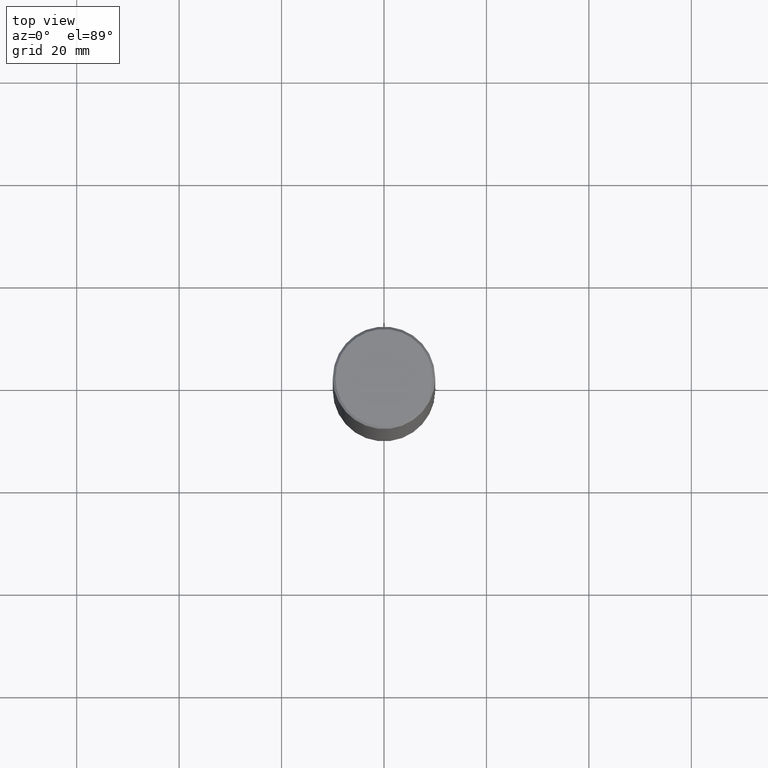
[diagram: clean part render]
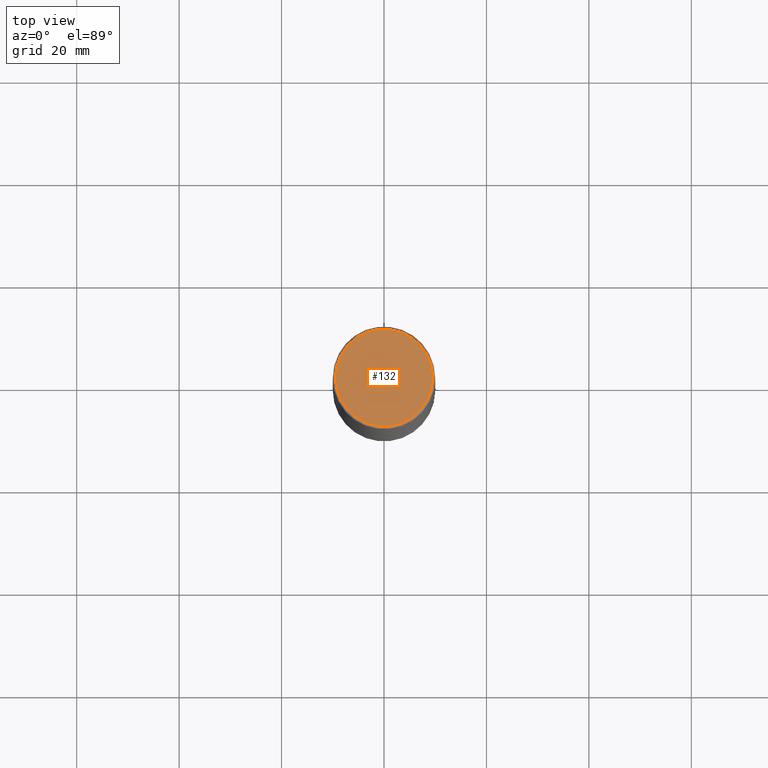
[diagram: same view with one face highlighted and labeled with its STEP entity id]
A machine part, top view. The second image highlights one B-rep face of the part: STEP entity #132.
In plain terms, the highlighted planar face has unit normal (0, -0, -1).
Its self-contained STEP definition (entity closure, byte-faithful):
#7 = CARTESIAN_POINT ( 'NONE',  ( -0.3736999999999999211, 2.644447966039789453E-15, 2.262311619753034352E-16 ) ) ;
#32 = FACE_OUTER_BOUND ( 'NONE', #367, .T. ) ;
#33 = VERTEX_POINT ( 'NONE', #79 ) ;
#36 = DIRECTION ( 'NONE',  ( 1.000000000000000000, -6.982962677686266711E-15, 4.877734241229876808E-29 ) ) ;
#47 = CIRCLE ( 'NONE', #104, 0.3736999999999999211 ) ;
#65 = CARTESIAN_POINT ( 'NONE',  ( 2.609533152651356620E-15, 0.3736999999999999211, -1.191650995338022328E-15 ) ) ;
#79 = CARTESIAN_POINT ( 'NONE',  ( 0.3736999999999999211, -2.667287895133367964E-15, 2.262311619753402158E-16 ) ) ;
#89 = CARTESIAN_POINT ( 'NONE',  ( -5.532412495976664402E-45, 7.898818803016371119E-31, 2.262311619753217762E-16 ) ) ;
#104 = AXIS2_PLACEMENT_3D ( 'NONE', #89, #352, #259 ) ;
#132 = ADVANCED_FACE ( 'NONE', ( #32 ), #365, .F. ) ;
#136 = AXIS2_PLACEMENT_3D ( 'NONE', #393, #138, #36 ) ;
#138 = DIRECTION ( 'NONE',  ( -2.445468806185136597E-29, 3.491481338843145583E-15, 1.000000000000000000 ) ) ;
#149 = AXIS2_PLACEMENT_3D ( 'NONE', #65, #189, #413 ) ;
#185 = ORIENTED_EDGE ( 'NONE', *, *, #406, .T. ) ;
#189 = DIRECTION ( 'NONE',  ( 2.438088387897960049E-29, -3.491481338843145188E-15, -1.000000000000000000 ) ) ;
#259 = DIRECTION ( 'NONE',  ( 1.000000000000000000, -6.982962677686266711E-15, 4.877734241229876808E-29 ) ) ;
#264 = EDGE_CURVE ( 'NONE', #328, #33, #47, .T. ) ;
#301 = CIRCLE ( 'NONE', #136, 0.3736999999999999211 ) ;
#328 = VERTEX_POINT ( 'NONE', #7 ) ;
#352 = DIRECTION ( 'NONE',  ( -2.445468806185136597E-29, 3.491481338843145583E-15, 1.000000000000000000 ) ) ;
#365 = PLANE ( 'NONE',  #149 ) ;
#367 = EDGE_LOOP ( 'NONE', ( #390, #185 ) ) ;
#390 = ORIENTED_EDGE ( 'NONE', *, *, #264, .T. ) ;
#393 = CARTESIAN_POINT ( 'NONE',  ( -5.532412495976664402E-45, 7.898818803016371119E-31, 2.262311619753217762E-16 ) ) ;
#406 = EDGE_CURVE ( 'NONE', #33, #328, #301, .T. ) ;
#413 = DIRECTION ( 'NONE',  ( -1.000000000000000000, 6.982962677686265922E-15, -4.876176775795935793E-29 ) ) ;